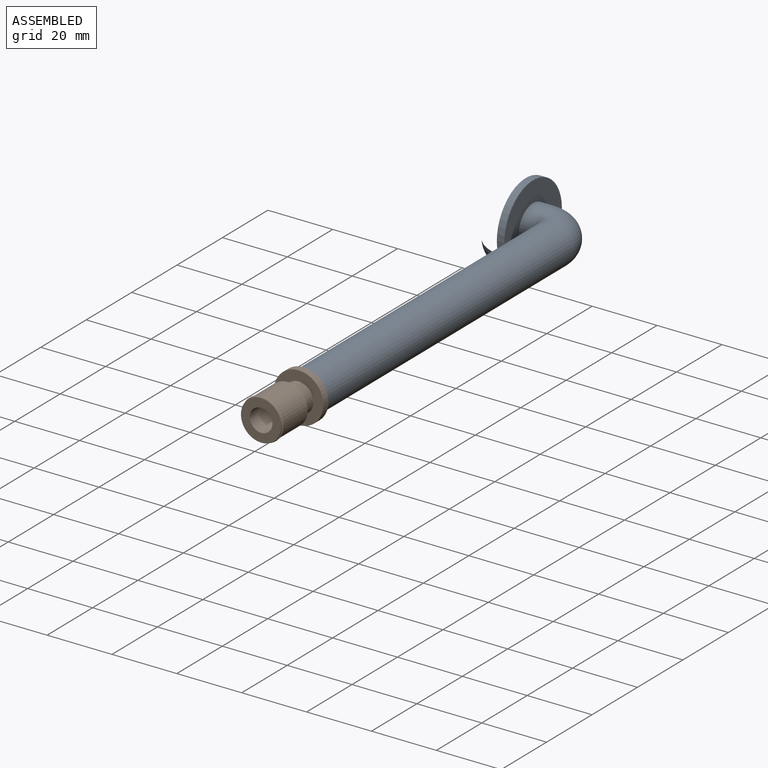
[diagram: assembled view]
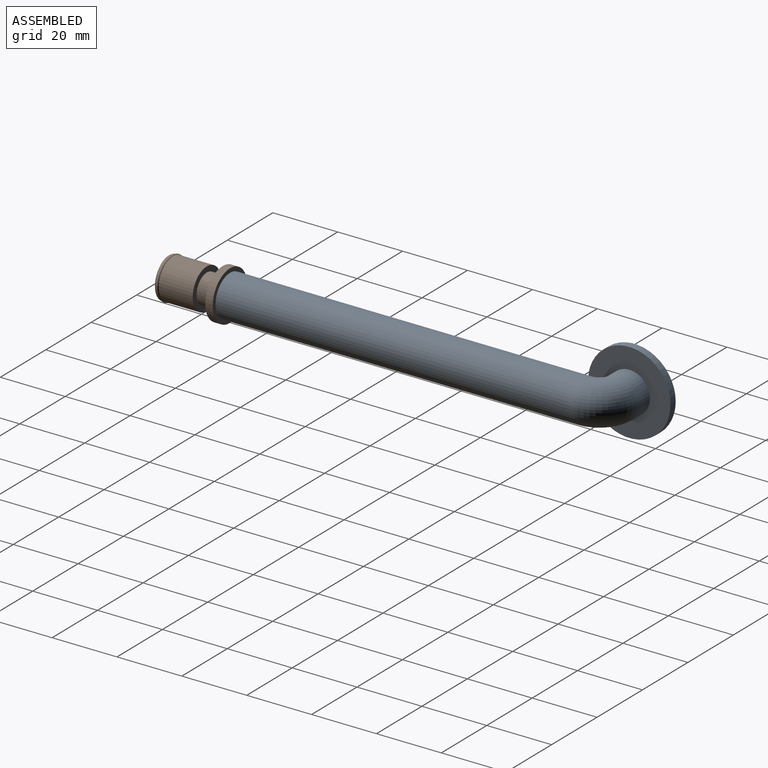
[diagram: assembled view, second angle]
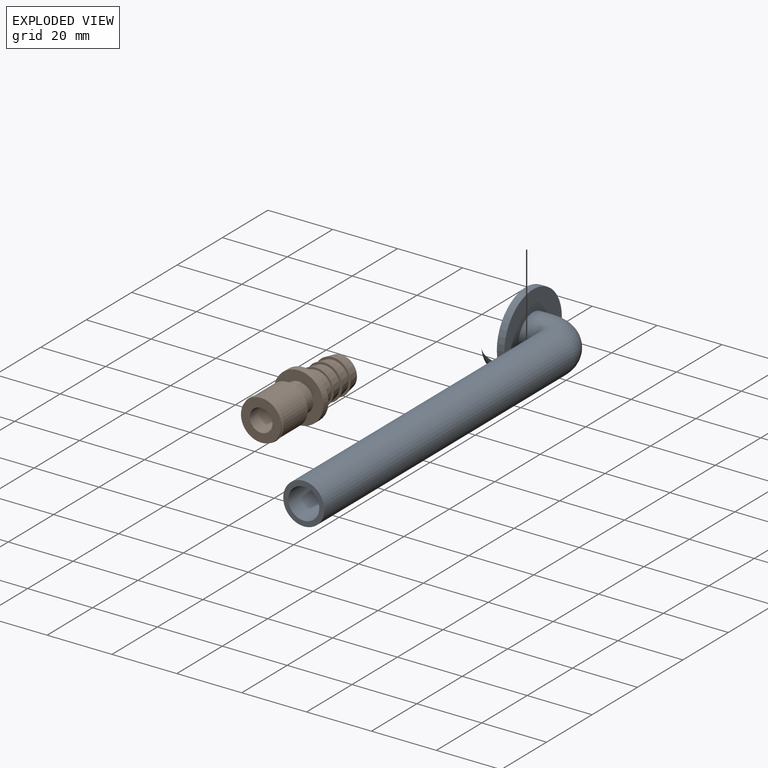
[diagram: exploded view]
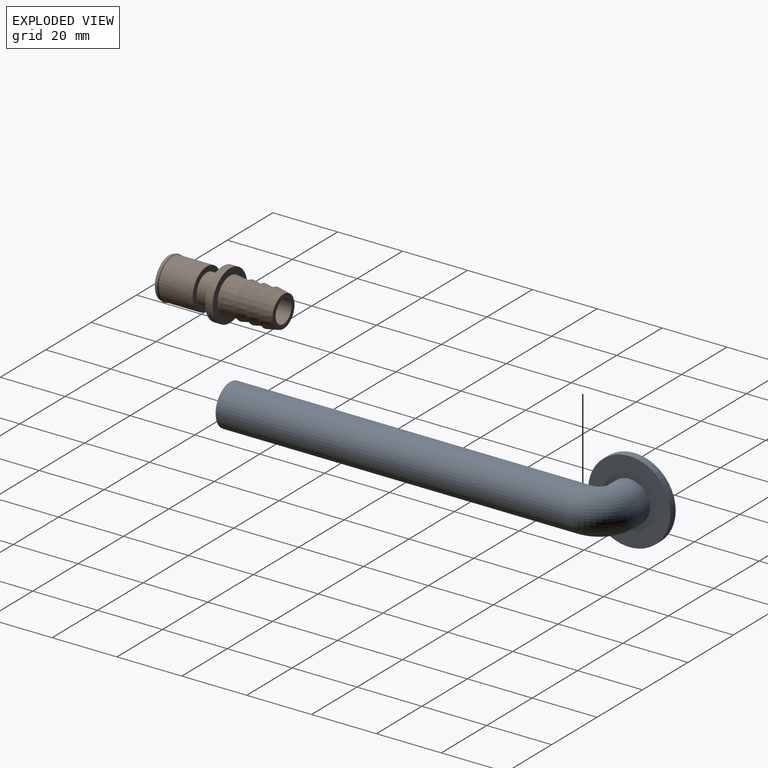
[diagram: exploded view, second angle]
ASSEMBLY  parts=2 mates=2
PART A: 10 faces, bbox 128.5x25.4x27.5 mm
  f0: cylinder r=6.35mm len=12.7mm, axis (0,0,1), area 162.1mm2, adj f6,f9
  f1: cylinder r=4.76mm len=9.53mm, axis (0,0,1), area 190mm2, adj f2,f4
  f2: torus R=6.35mm, axis (0,1,0), area 298.5mm2, adj f1,f3
  f3: cylinder r=4.76mm len=109.47mm, axis (1,0,0), area 3275.9mm2, adj f2,f5
  f4: plane 25.4x25.4mm, normal (0,0,-1), area 435.5mm2, adj f1,f8
  f5: plane 12.7x12.7mm, normal (1,0,0), area 55.4mm2, adj f3,f7
  f6: torus R=6.35mm, axis (0,1,0), area 398mm2, adj f0,f7
  f7: cylinder r=6.35mm len=109.47mm, axis (1,0,0), area 4367.8mm2, adj f5,f6
  f8: cylinder r=12.7mm len=25.4mm, axis (0,0,-1), area 182.4mm2, adj f4,f9
  f9: plane 25.4x25.4mm, normal (0,0,1), area 380mm2, adj f0,f8
PART B: 18 faces, bbox 15.2x35.3x15.2 mm
  f0: plane 9.67x9.67mm, normal (0,1,0), area 35mm2, adj f1,f17
  f1: cone r=5.54mm half-angle=10.6deg, axis (0,-1,0), area 125.3mm2, adj f0,f2
  f2: plane 11.08x11.08mm, normal (0,-1,0), area 23mm2, adj f1,f3
  f3: cone r=5.54mm half-angle=10.6deg, axis (0,-1,0), area 125.3mm2, adj f2,f4
  f4: plane 11.08x11.08mm, normal (0,-1,0), area 23mm2, adj f3,f5
  f5: cone r=5.54mm half-angle=10.6deg, axis (0,-1,0), area 125.3mm2, adj f4,f6
  f6: plane 11.08x11.08mm, normal (0,-1,0), area 19.4mm2, adj f5,f7
  f7: cone r=5.54mm half-angle=6.5deg, axis (0,-1,0), area 171.8mm2, adj f6,f8
  f8: plane 15.24x15.24mm, normal (0,1,0), area 85.9mm2, adj f7,f9
  f9: cylinder r=7.62mm len=15.24mm, axis (0,-1,0), area 109.4mm2, adj f8,f10
  f10: plane 15.24x15.24mm, normal (0,-1,0), area 117.9mm2, adj f9,f11
  f11: cylinder r=4.53mm len=9.06mm, axis (0,-1,0), area 138.2mm2, adj f10,f12
  f12: plane 12.46x12.46mm, normal (0,1,0), area 57.5mm2, adj f11,f13
  f13: cylinder r=6.23mm len=12.46mm, axis (0,-1,0), area 411.4mm2, adj f12,f14
  f14: torus R=6.06mm, axis (0,-1,0), area 34.3mm2, adj f13,f15
  f15: cylinder r=6.23mm len=12.46mm, axis (0,-1,0), area 17.9mm2, adj f14,f16
  f16: plane 12.46x12.46mm, normal (0,-1,0), area 83.5mm2, adj f15,f17
  f17: cylinder r=3.5mm len=35.31mm, axis (0,-1,0), area 776.4mm2, adj f0,f16
PLACE A rot(axis=(-0.58,0.58,-0.58),120deg) t=(113.71,171.14,1.8)mm fixed
PLACE B rot(axis=(0,1,0),164.7deg) t=(126.41,36.52,1.8)mm
MATE cylindrical A.f3 <-> B.f1  axis (0,-1,0) through (126.41,110.06,1.8)mm
MATE planar B.f1 <-> A.f3  axis (0,1,0) through (126.41,55.32,1.8)mm
